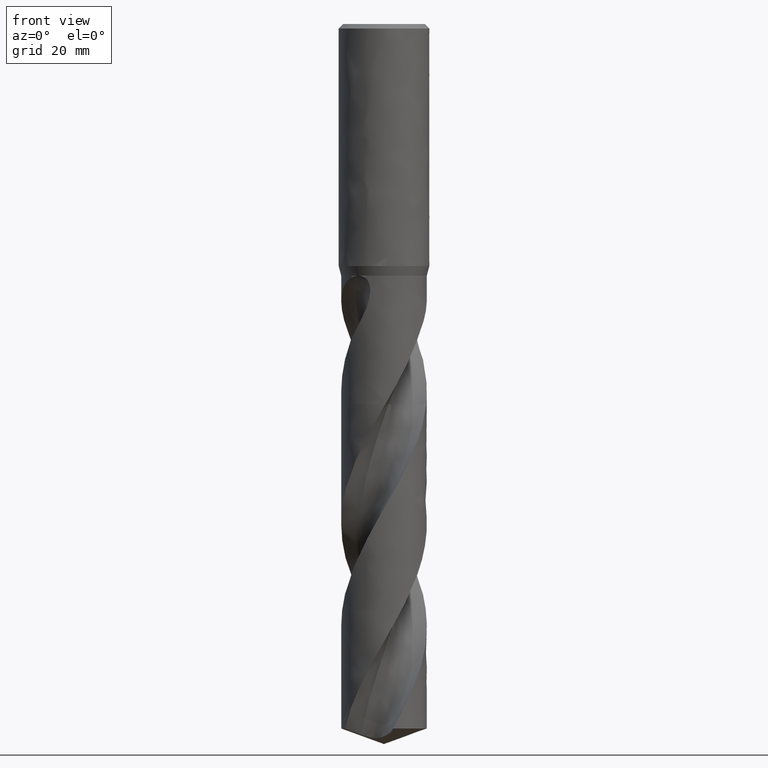
[diagram: clean part render]
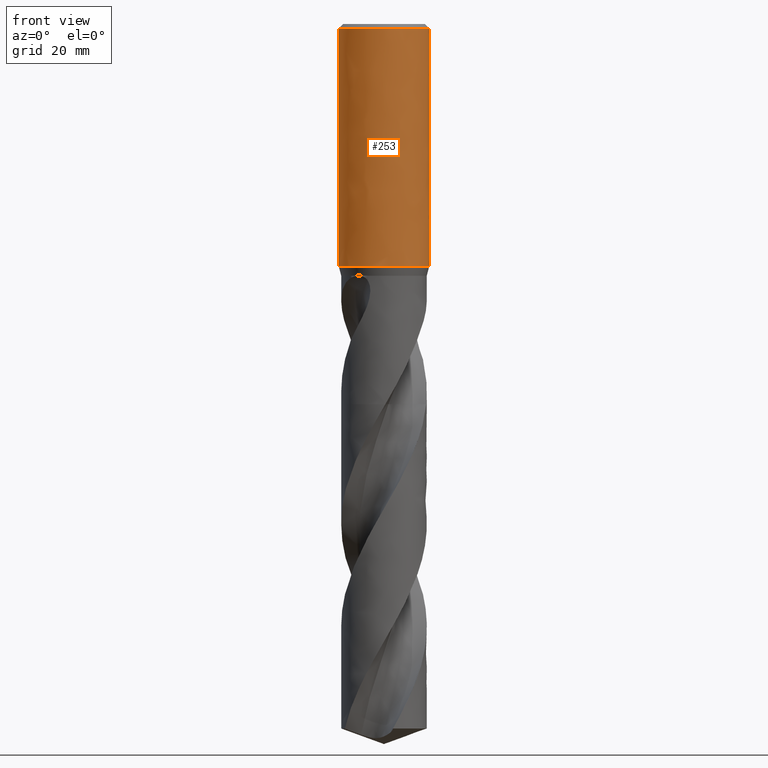
[diagram: same view with one face highlighted and labeled with its STEP entity id]
A machine part, front view. The second image highlights one B-rep face of the part: STEP entity #253.
In plain terms, the highlighted face is a freeform B-spline surface patch.
Its self-contained STEP definition (entity closure, byte-faithful):
#137 = VERTEX_POINT('', #138);
#138 = CARTESIAN_POINT('', (-9., 3.49416224732723E-15, -48.064));
#144 = EDGE_CURVE('', #137, #137, #145, .T.);
#145 = CIRCLE('', #146, 9.);
#146 = AXIS2_PLACEMENT_3D('', #147, #148, #149);
#147 = CARTESIAN_POINT('', (1.80211135484649E-31, 2.94307118771092E-15, -48.064));
#148 = DIRECTION('', (3.74939945665464E-33, 6.12323399573677E-17, -1.));
#149 = DIRECTION('', (-1., 6.12323399573677E-17, 0.));
#202 = VERTEX_POINT('', #203);
#203 = CARTESIAN_POINT('', (-9., 6.06200165577939E-16, -0.899999999999999));
#219 = EDGE_CURVE('', #202, #202, #220, .T.);
#220 = CIRCLE('', #221, 9.);
#221 = AXIS2_PLACEMENT_3D('', #222, #223, #224);
#222 = CARTESIAN_POINT('', (3.37445951098917E-33, 5.51091059616305E-17, -0.899999999999999));
#223 = DIRECTION('', (3.74939945665464E-33, 6.12323399573677E-17, -1.));
#224 = DIRECTION('', (-1., 6.12323399573677E-17, 0.));
#253 = ADVANCED_FACE('', (#254, #265), #448, .T.);
#254 = FACE_OUTER_BOUND('', #255, .T.);
#255 = EDGE_LOOP('', (#256, #262, #263, #264));
#256 = ORIENTED_EDGE('', *, *, #257, .T.);
#257 = EDGE_CURVE('', #137, #202, #258, .T.);
#258 = LINE('', #259, #260);
#259 = CARTESIAN_POINT('', (-9., 3.49416224732723E-15, -48.064));
#260 = VECTOR('', #261, 47.164);
#261 = DIRECTION('', (0., -2.88796208174929E-15, 47.164));
#262 = ORIENTED_EDGE('', *, *, #219, .T.);
#263 = ORIENTED_EDGE('', *, *, #257, .F.);
#264 = ORIENTED_EDGE('', *, *, #144, .F.);
#265 = FACE_BOUND('', #266, .T.);
#266 = EDGE_LOOP('', (#267, #277, #361, #369));
#267 = ORIENTED_EDGE('', *, *, #268, .F.);
#268 = EDGE_CURVE('', #269, #271, #273, .T.);
#269 = VERTEX_POINT('', #270);
#270 = CARTESIAN_POINT('', (5.4, 7.2, -19.));
#271 = VERTEX_POINT('', #272);
#272 = CARTESIAN_POINT('', (5.4, 7.2, -29.));
#273 = LINE('', #274, #275);
#274 = CARTESIAN_POINT('', (5.4, 7.2, -19.));
#275 = VECTOR('', #276, 10.);
#276 = DIRECTION('', (3.5527136788005E-15, -1.77635683940025E-15, -10.));
#277 = ORIENTED_EDGE('', *, *, #278, .F.);
#278 = EDGE_CURVE('', #279, #269, #281, .T.);
#279 = VERTEX_POINT('', #280);
#280 = CARTESIAN_POINT('', (-5.4, 7.2, -19.));
#281 = B_SPLINE_CURVE_WITH_KNOTS('', 3, (#282, #283, #284, #285, #286, #287, #288, #289, #290, #291, #292, #293, #294, #295, #296, #297, #298, #299, #300, #301, #302, #303, #304, #305, #306, #307, #308, #309, #310, #311, #312, #313, #314, #315, #316, #317, #318, #319, #320, #321, #322, #323, #324, #325, #326, #327, #328, #329, #330, #331, #332, #333, #334, #335, #336, #337, #338, #339, #340, #341, #342, #343, #344, #345, #346, #347, #348, #349, #350, #351, #352, #353, #354, #355, #356, #357, #358, #359, #360), .UNSPECIFIED., .F., .U., (4, 3, 3, 3, 3, 3, 3, 3, 3, 3, 3, 3, 3, 3, 3, 3, 3, 3, 3, 3, 3, 3, 3, 3, 3, 3, 4), (0., 0.594040663597212, 1.26041144071549, 1.70446857485282, 2.14866333817131, 2.59300859250914, 3.03751681544177, 3.48219936162189, 3.9270655762299, 4.37212182763082, 4.81737057349699, 5.26280961242599, 5.70843168254005, 6.15207326917655, 6.59571485581306, 7.04133692592711, 7.48677596485611, 7.93202471072228, 8.37708096212321, 8.82194717673122, 9.26662972291133, 9.71113794584396, 10.1554832001818, 10.5996779635003, 11.0437350976376, 11.7101058747559, 12.3041465383531), .UNSPECIFIED.);
#282 = CARTESIAN_POINT('', (-5.4, 7.2, -19.));
#283 = CARTESIAN_POINT('', (-5.26479802909139, 7.30140147818146, -18.8968131061442));
#284 = CARTESIAN_POINT('', (-5.12529349076084, 7.40007652035654, -18.796400653725));
#285 = CARTESIAN_POINT('', (-4.9816051171591, 7.495572723728, -18.6992230111734));
#286 = CARTESIAN_POINT('', (-4.82042131435335, 7.6026965001832, -18.5902130642895));
#287 = CARTESIAN_POINT('', (-4.65378034787343, 7.70594482938087, -18.485146801186));
#288 = CARTESIAN_POINT('', (-4.4819622721563, 7.80461492906393, -18.3847393782832));
#289 = CARTESIAN_POINT('', (-4.36746589128875, 7.8703668545607, -18.3178297327956));
#290 = CARTESIAN_POINT('', (-4.25058570776517, 7.93413550533036, -18.2529382823325));
#291 = CARTESIAN_POINT('', (-4.1314423035631, 7.99569787400258, -18.1902919608428));
#292 = CARTESIAN_POINT('', (-4.01226197256063, 8.05727932305373, -18.1276262230184));
#293 = CARTESIAN_POINT('', (-3.89073480432669, 8.11669510611465, -18.0671642829164));
#294 = CARTESIAN_POINT('', (-3.76701821052363, 8.17371236352145, -18.0091431002522));
#295 = CARTESIAN_POINT('', (-3.64325970214199, 8.23074893809698, -17.9511022602943));
#296 = CARTESIAN_POINT('', (-3.51721670607767, 8.28542791966913, -17.8954605244063));
#297 = CARTESIAN_POINT('', (-3.38908933419794, 8.33751002906898, -17.8424613848395));
#298 = CARTESIAN_POINT('', (-3.26091497017068, 8.38961124016533, -17.789442807245));
#299 = CARTESIAN_POINT('', (-3.13054880120214, 8.4391560833852, -17.7390256085008));
#300 = CARTESIAN_POINT('', (-2.99823911366232, 8.48590373603811, -17.6914548515571));
#301 = CARTESIAN_POINT('', (-2.86587753809611, 8.53266972176609, -17.6438654387407));
#302 = CARTESIAN_POINT('', (-2.73145198085765, 8.57667765348976, -17.5990826420693));
#303 = CARTESIAN_POINT('', (-2.59526331508479, 8.61769158913077, -17.5573465579461));
#304 = CARTESIAN_POINT('', (-2.45901839894107, 8.65872246486791, -17.5155932354559));
#305 = CARTESIAN_POINT('', (-2.32087660361192, 8.69679599424022, -17.4768493304901));
#306 = CARTESIAN_POINT('', (-2.18119392164242, 8.73168901623221, -17.4413419333479));
#307 = CARTESIAN_POINT('', (-2.041451570388, 8.76659694373461, -17.4058193682481));
#308 = CARTESIAN_POINT('', (-1.90002151743334, 8.79835727226656, -17.3734998231308));
#309 = CARTESIAN_POINT('', (-1.75731465200414, 8.82676867340771, -17.3445881712849));
#310 = CARTESIAN_POINT('', (-1.61454606340699, 8.85519236296735, -17.3156640146534));
#311 = CARTESIAN_POINT('', (-1.4703417257792, 8.88029498032619, -17.2901194056461));
#312 = CARTESIAN_POINT('', (-1.32516367718605, 8.90190660637747, -17.2681272552022));
#313 = CARTESIAN_POINT('', (-1.17992358153318, 8.9235274689343, -17.2461257056219));
#314 = CARTESIAN_POINT('', (-1.03354037155764, 8.94167888110053, -17.2276546944087));
#315 = CARTESIAN_POINT('', (-0.886519512916875, 8.95623152632946, -17.2128458150364));
#316 = CARTESIAN_POINT('', (-0.739438243311575, 8.97079015124959, -17.1980308506862));
#317 = CARTESIAN_POINT('', (-0.591541832835609, 8.9817641522442, -17.1868636261436));
#318 = CARTESIAN_POINT('', (-0.443367564010619, 8.98907254410506, -17.1794265525552));
#319 = CARTESIAN_POINT('', (-0.295851827854648, 8.99634845519286, -17.1720225316417));
#320 = CARTESIAN_POINT('', (-0.147880528878833, 9., -17.1683066926502));
#321 = CARTESIAN_POINT('', (1.96336547242294E-15, 9., -17.1683066926502));
#322 = CARTESIAN_POINT('', (0.147880528878837, 9., -17.1683066926502));
#323 = CARTESIAN_POINT('', (0.295851827854652, 8.99634845519286, -17.1720225316417));
#324 = CARTESIAN_POINT('', (0.443367564010623, 8.98907254410506, -17.1794265525552));
#325 = CARTESIAN_POINT('', (0.591541832835613, 8.9817641522442, -17.1868636261436));
#326 = CARTESIAN_POINT('', (0.739438243311579, 8.97079015124959, -17.1980308506862));
#327 = CARTESIAN_POINT('', (0.886519512916879, 8.95623152632946, -17.2128458150364));
#328 = CARTESIAN_POINT('', (1.03354037155764, 8.94167888110053, -17.2276546944087));
#329 = CARTESIAN_POINT('', (1.17992358153318, 8.92352746893429, -17.2461257056219));
#330 = CARTESIAN_POINT('', (1.32516367718605, 8.90190660637747, -17.2681272552022));
#331 = CARTESIAN_POINT('', (1.4703417257792, 8.88029498032619, -17.2901194056461));
#332 = CARTESIAN_POINT('', (1.614546063407, 8.85519236296735, -17.3156640146534));
#333 = CARTESIAN_POINT('', (1.75731465200414, 8.82676867340771, -17.3445881712849));
#334 = CARTESIAN_POINT('', (1.90002151743335, 8.79835727226656, -17.3734998231308));
#335 = CARTESIAN_POINT('', (2.04145157038801, 8.76659694373461, -17.4058193682481));
#336 = CARTESIAN_POINT('', (2.18119392164242, 8.73168901623221, -17.4413419333479));
#337 = CARTESIAN_POINT('', (2.32087660361193, 8.69679599424022, -17.4768493304901));
#338 = CARTESIAN_POINT('', (2.45901839894107, 8.65872246486791, -17.5155932354559));
#339 = CARTESIAN_POINT('', (2.59526331508479, 8.61769158913077, -17.5573465579461));
#340 = CARTESIAN_POINT('', (2.73145198085765, 8.57667765348976, -17.5990826420693));
#341 = CARTESIAN_POINT('', (2.86587753809611, 8.53266972176609, -17.6438654387407));
#342 = CARTESIAN_POINT('', (2.99823911366232, 8.48590373603811, -17.6914548515571));
#343 = CARTESIAN_POINT('', (3.13054880120214, 8.4391560833852, -17.7390256085008));
#344 = CARTESIAN_POINT('', (3.26091497017068, 8.38961124016532, -17.789442807245));
#345 = CARTESIAN_POINT('', (3.38908933419795, 8.33751002906898, -17.8424613848395));
#346 = CARTESIAN_POINT('', (3.51721670607767, 8.28542791966913, -17.8954605244063));
#347 = CARTESIAN_POINT('', (3.64325970214199, 8.23074893809698, -17.9511022602943));
#348 = CARTESIAN_POINT('', (3.76701821052363, 8.17371236352145, -18.0091431002522));
#349 = CARTESIAN_POINT('', (3.8907348043267, 8.11669510611464, -18.0671642829164));
#350 = CARTESIAN_POINT('', (4.01226197256063, 8.05727932305372, -18.1276262230184));
#351 = CARTESIAN_POINT('', (4.1314423035631, 7.99569787400257, -18.1902919608428));
#352 = CARTESIAN_POINT('', (4.25058570776518, 7.93413550533036, -18.2529382823325));
#353 = CARTESIAN_POINT('', (4.36746589128876, 7.8703668545607, -18.3178297327956));
#354 = CARTESIAN_POINT('', (4.4819622721563, 7.80461492906393, -18.3847393782832));
#355 = CARTESIAN_POINT('', (4.65378034787343, 7.70594482938087, -18.485146801186));
#356 = CARTESIAN_POINT('', (4.82042131435335, 7.6026965001832, -18.5902130642895));
#357 = CARTESIAN_POINT('', (4.9816051171591, 7.495572723728, -18.6992230111734));
#358 = CARTESIAN_POINT('', (5.12529349076084, 7.40007652035654, -18.796400653725));
#359 = CARTESIAN_POINT('', (5.26479802909139, 7.30140147818146, -18.8968131061442));
#360 = CARTESIAN_POINT('', (5.4, 7.2, -19.));
#361 = ORIENTED_EDGE('', *, *, #362, .T.);
#362 = EDGE_CURVE('', #279, #363, #365, .T.);
#363 = VERTEX_POINT('', #364);
#364 = CARTESIAN_POINT('', (-5.4, 7.2, -29.));
#365 = LINE('', #366, #367);
#366 = CARTESIAN_POINT('', (-5.4, 7.2, -19.));
#367 = VECTOR('', #368, 10.);
#368 = DIRECTION('', (-1.77635683940025E-15, 0., -10.));
#369 = ORIENTED_EDGE('', *, *, #370, .T.);
#370 = EDGE_CURVE('', #363, #271, #371, .T.);
#371 = B_SPLINE_CURVE_WITH_KNOTS('', 3, (#372, #373, #374, #375, #376, #377, #378, #379, #380, #381, #382, #383, #384, #385, #386, #387, #388, #389, #390, #391, #392, #393, #394, #395, #396, #397, #398, #399, #400, #401, #402, #403, #404, #405, #406, #407, #408, #409, #410, #411, #412, #413, #414, #415, #416, #417, #418, #419, #420, #421, #422, #423, #424, #425, #426, #427, #428, #429, #430, #431, #432, #433, #434, #435, #436, #437, #438, #439, #440, #441, #442, #443, #444, #445, #446, #447), .UNSPECIFIED., .F., .U., (4, 3, 3, 3, 3, 3, 3, 3, 3, 3, 3, 3, 3, 3, 3, 3, 3, 3, 3, 3, 3, 3, 3, 3, 3, 4), (0., 0.664644173658011, 1.32902102630459, 1.99308754361799, 2.65679513144813, 3.09933269433987, 3.54172932197335, 3.98397500454258, 4.42606107124738, 4.86798092061598, 5.30973076095584, 5.60449139554919, 6.15182448381269, 6.5954660704492, 7.04108814056326, 7.48652717949226, 7.93177592535843, 8.37683217675935, 8.82169839136736, 9.26638093754747, 9.7108891604801, 10.1552344148179, 10.5994291781364, 11.0434863122738, 11.709857089392, 12.3038977529892), .UNSPECIFIED.);
#372 = CARTESIAN_POINT('', (-5.4, 7.2, -29.));
#373 = CARTESIAN_POINT('', (-5.24872887036498, 7.31345334722627, -29.1154509648949));
#374 = CARTESIAN_POINT('', (-5.09205985063791, 7.42350144151878, -29.2274367192295));
#375 = CARTESIAN_POINT('', (-4.93016480527052, 7.52950695549673, -29.3353087139493));
#376 = CARTESIAN_POINT('', (-4.76833487436436, 7.63546983387756, -29.4431373223702));
#377 = CARTESIAN_POINT('', (-4.60108057390535, 7.7375234755679, -29.5469878626341));
#378 = CARTESIAN_POINT('', (-4.42869380382462, 7.83496465799101, -29.6461447302478));
#379 = CARTESIAN_POINT('', (-4.25638755687697, 7.93236032491836, -29.7452552809565));
#380 = CARTESIAN_POINT('', (-4.07870594956923, 8.02528459240207, -29.8398157025345));
#381 = CARTESIAN_POINT('', (-3.89609994708907, 8.11297757930443, -29.9290527343182));
#382 = CARTESIAN_POINT('', (-3.71359264357417, 8.20062316794524, -30.0182415332805));
#383 = CARTESIAN_POINT('', (-3.52586581531026, 8.28318338583407, -30.1022554213696));
#384 = CARTESIAN_POINT('', (-3.33357158895154, 8.3598624666522, -30.1802846208964));
#385 = CARTESIAN_POINT('', (-3.205356363073, 8.41098946018405, -30.2323118274949));
#386 = CARTESIAN_POINT('', (-3.07498525448789, 8.45955417146339, -30.28173163673));
#387 = CARTESIAN_POINT('', (-2.94271034622954, 8.50531926609424, -30.3283025353665));
#388 = CARTESIAN_POINT('', (-2.81047756365705, 8.55106978588225, -30.3748586025351));
#389 = CARTESIAN_POINT('', (-2.67622324197505, 8.59406295132301, -30.4186087655349));
#390 = CARTESIAN_POINT('', (-2.54025092361204, 8.6340677114028, -30.4593179051461));
#391 = CARTESIAN_POINT('', (-2.40432499879964, 8.67405882191859, -30.5000131548602));
#392 = CARTESIAN_POINT('', (-2.26655047976619, 8.71110163575476, -30.5377081960763));
#393 = CARTESIAN_POINT('', (-2.1272842103941, 8.74497923886662, -30.5721822954591));
#394 = CARTESIAN_POINT('', (-1.98806820517798, 8.77884461483162, -30.6066439524069));
#395 = CARTESIAN_POINT('', (-1.84721728332668, 8.80958146722244, -30.6379220006365));
#396 = CARTESIAN_POINT('', (-1.70514064244625, 8.83699583509454, -30.6658190640568));
#397 = CARTESIAN_POINT('', (-1.56311742012515, 8.86439989559993, -30.6937056386245));
#398 = CARTESIAN_POINT('', (-1.41971367092193, 8.88851339022622, -30.7182437090266));
#399 = CARTESIAN_POINT('', (-1.27538655357216, 8.90917443644289, -30.7392685424033));
#400 = CARTESIAN_POINT('', (-1.13111495966874, 8.92982753423994, -30.7602852874093));
#401 = CARTESIAN_POINT('', (-0.985755179713181, 8.94705401356411, -30.7778150801245));
#402 = CARTESIAN_POINT('', (-0.839804188152315, 8.96073261098454, -30.791734521985));
#403 = CARTESIAN_POINT('', (-0.742417380136917, 8.96985974966759, -30.8010223657855));
#404 = CARTESIAN_POINT('', (-0.644703887412926, 8.97741465536753, -30.808710293679));
#405 = CARTESIAN_POINT('', (-0.546818772119844, 8.98337293172544, -30.8147734797502));
#406 = CARTESIAN_POINT('', (-0.36505853631935, 8.99443669471469, -30.8260320467621));
#407 = CARTESIAN_POINT('', (-0.182444362754501, 9., -30.8316933073498));
#408 = CARTESIAN_POINT('', (2.75545529808155E-16, 9., -30.8316933073498));
#409 = CARTESIAN_POINT('', (0.147880528878836, 9., -30.8316933073498));
#410 = CARTESIAN_POINT('', (0.29585182785465, 8.99634845519286, -30.8279774683583));
#411 = CARTESIAN_POINT('', (0.443367564010621, 8.98907254410506, -30.8205734474448));
#412 = CARTESIAN_POINT('', (0.591541832835611, 8.9817641522442, -30.8131363738564));
#413 = CARTESIAN_POINT('', (0.739438243311578, 8.97079015124959, -30.8019691493138));
#414 = CARTESIAN_POINT('', (0.886519512916877, 8.95623152632946, -30.7871541849636));
#415 = CARTESIAN_POINT('', (1.03354037155764, 8.94167888110053, -30.7723453055913));
#416 = CARTESIAN_POINT('', (1.17992358153318, 8.9235274689343, -30.7538742943781));
#417 = CARTESIAN_POINT('', (1.32516367718605, 8.90190660637747, -30.7318727447978));
#418 = CARTESIAN_POINT('', (1.4703417257792, 8.88029498032619, -30.7098805943539));
#419 = CARTESIAN_POINT('', (1.614546063407, 8.85519236296735, -30.6843359853466));
#420 = CARTESIAN_POINT('', (1.75731465200414, 8.8267686734077, -30.6554118287151));
#421 = CARTESIAN_POINT('', (1.90002151743335, 8.79835727226655, -30.6265001768692));
#422 = CARTESIAN_POINT('', (2.04145157038801, 8.76659694373461, -30.5941806317519));
#423 = CARTESIAN_POINT('', (2.18119392164242, 8.73168901623221, -30.5586580666521));
#424 = CARTESIAN_POINT('', (2.32087660361193, 8.69679599424022, -30.5231506695099));
#425 = CARTESIAN_POINT('', (2.45901839894107, 8.65872246486791, -30.4844067645441));
#426 = CARTESIAN_POINT('', (2.59526331508479, 8.61769158913077, -30.4426534420539));
#427 = CARTESIAN_POINT('', (2.73145198085765, 8.57667765348976, -30.4009173579307));
#428 = CARTESIAN_POINT('', (2.86587753809611, 8.53266972176609, -30.3561345612593));
#429 = CARTESIAN_POINT('', (2.99823911366233, 8.48590373603811, -30.3085451484429));
#430 = CARTESIAN_POINT('', (3.13054880120214, 8.4391560833852, -30.2609743914992));
#431 = CARTESIAN_POINT('', (3.26091497017068, 8.38961124016532, -30.210557192755));
#432 = CARTESIAN_POINT('', (3.38908933419794, 8.33751002906898, -30.1575386151605));
#433 = CARTESIAN_POINT('', (3.51721670607766, 8.28542791966913, -30.1045394755937));
#434 = CARTESIAN_POINT('', (3.64325970214199, 8.23074893809698, -30.0488977397057));
#435 = CARTESIAN_POINT('', (3.76701821052363, 8.17371236352145, -29.9908568997478));
#436 = CARTESIAN_POINT('', (3.89073480432669, 8.11669510611465, -29.9328357170836));
#437 = CARTESIAN_POINT('', (4.01226197256062, 8.05727932305373, -29.8723737769816));
#438 = CARTESIAN_POINT('', (4.1314423035631, 7.99569787400258, -29.8097080391572));
#439 = CARTESIAN_POINT('', (4.25058570776517, 7.93413550533037, -29.7470617176675));
#440 = CARTESIAN_POINT('', (4.36746589128875, 7.8703668545607, -29.6821702672044));
#441 = CARTESIAN_POINT('', (4.4819622721563, 7.80461492906393, -29.6152606217168));
#442 = CARTESIAN_POINT('', (4.65378034787342, 7.70594482938087, -29.514853198814));
#443 = CARTESIAN_POINT('', (4.82042131435334, 7.6026965001832, -29.4097869357105));
#444 = CARTESIAN_POINT('', (4.9816051171591, 7.49557272372801, -29.3007769888266));
#445 = CARTESIAN_POINT('', (5.12529349076084, 7.40007652035654, -29.203599346275));
#446 = CARTESIAN_POINT('', (5.26479802909139, 7.30140147818146, -29.1031868938558));
#447 = CARTESIAN_POINT('', (5.4, 7.2, -29.));
#448 = (
   BOUNDED_SURFACE ()
   B_SPLINE_SURFACE (1, 2, ((#449, #450, #451, #452, #453, #454, #455, #456, #457), (#458, #459, #460, #461, #462, #463, #464, #465, #466)), .UNSPECIFIED., .F., .T., .U.)
   B_SPLINE_SURFACE_WITH_KNOTS ((2, 2), (3, 2, 2, 2, 3), (0., 1.), (0., 14.1371669411541, 28.2743338823081, 42.4115008234622, 56.5486677646163), .UNSPECIFIED.)
   GEOMETRIC_REPRESENTATION_ITEM ()
   RATIONAL_B_SPLINE_SURFACE (((1., 0.707106781186548, 1., 0.707106781186548, 1., 0.707106781186548, 1., 0.707106781186548, 1.), (1., 0.707106781186548, 1., 0.707106781186548, 1., 0.707106781186548, 1., 0.707106781186548, 1.)))
   REPRESENTATION_ITEM ('')
   SURFACE ()
);
#449 = CARTESIAN_POINT('', (-9., 3.49416224732723E-15, -48.064));
#450 = CARTESIAN_POINT('', (-9., 9., -48.064));
#451 = CARTESIAN_POINT('', (1.97215226305253E-31, 9., -48.064));
#452 = CARTESIAN_POINT('', (9., 9., -48.064));
#453 = CARTESIAN_POINT('', (9., 3.49416224732723E-15, -48.064));
#454 = CARTESIAN_POINT('', (9., -8.99999999999999, -48.064));
#455 = CARTESIAN_POINT('', (1.10218211923262E-15, -9., -48.064));
#456 = CARTESIAN_POINT('', (-9., -9., -48.064));
#457 = CARTESIAN_POINT('', (-9., 3.49416224732723E-15, -48.064));
#458 = CARTESIAN_POINT('', (-9., 6.06200165577939E-16, -0.899999999999999));
#459 = CARTESIAN_POINT('', (-9., 9., -0.899999999999998));
#460 = CARTESIAN_POINT('', (0., 9., -0.899999999999998));
#461 = CARTESIAN_POINT('', (9., 9., -0.899999999999998));
#462 = CARTESIAN_POINT('', (9., 6.06200165577939E-16, -0.899999999999999));
#463 = CARTESIAN_POINT('', (9., -9., -0.899999999999999));
#464 = CARTESIAN_POINT('', (1.10218211923262E-15, -9., -0.899999999999999));
#465 = CARTESIAN_POINT('', (-9., -9., -0.899999999999999));
#466 = CARTESIAN_POINT('', (-9., 6.06200165577939E-16, -0.899999999999999));